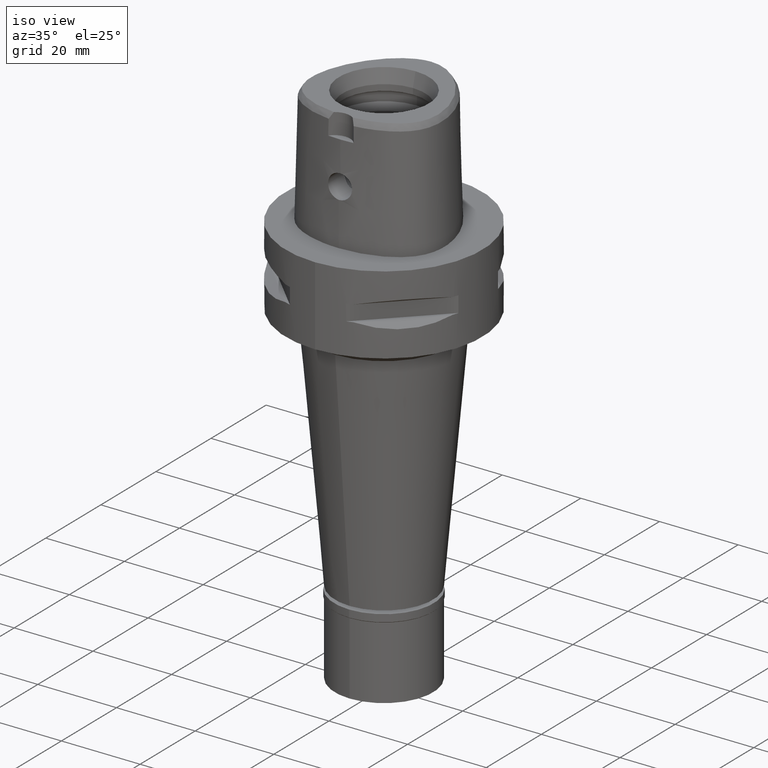
[diagram: clean part render]
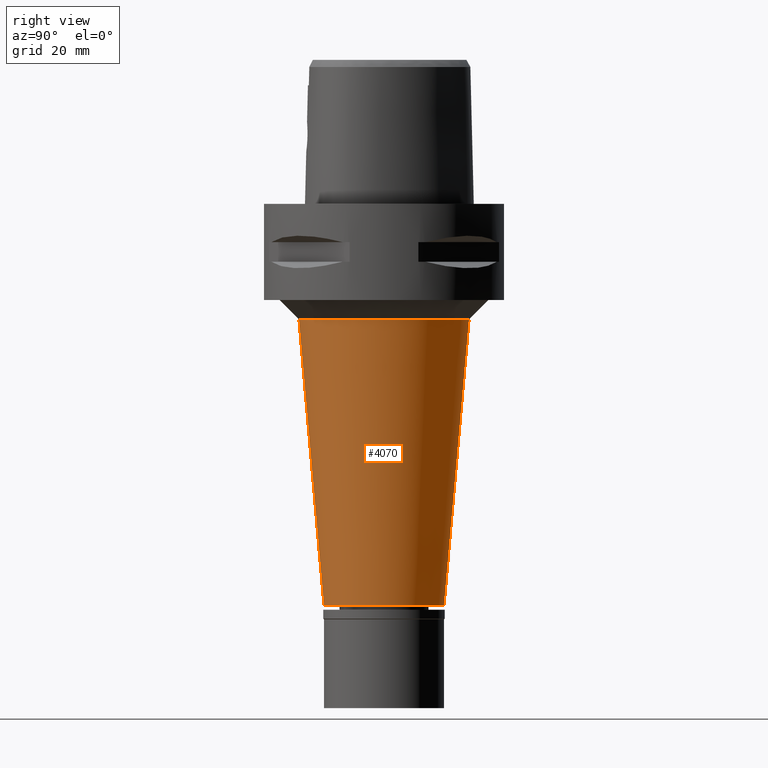
[diagram: tour spotlight — one face highlighted and labeled with its STEP entity id]
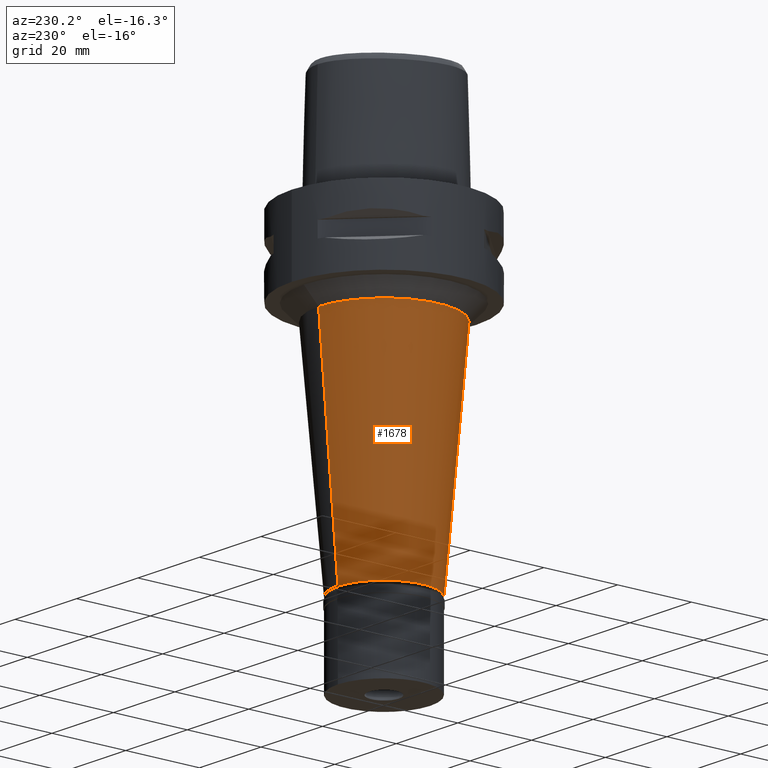
[diagram: tour spotlight — one face highlighted and labeled with its STEP entity id]
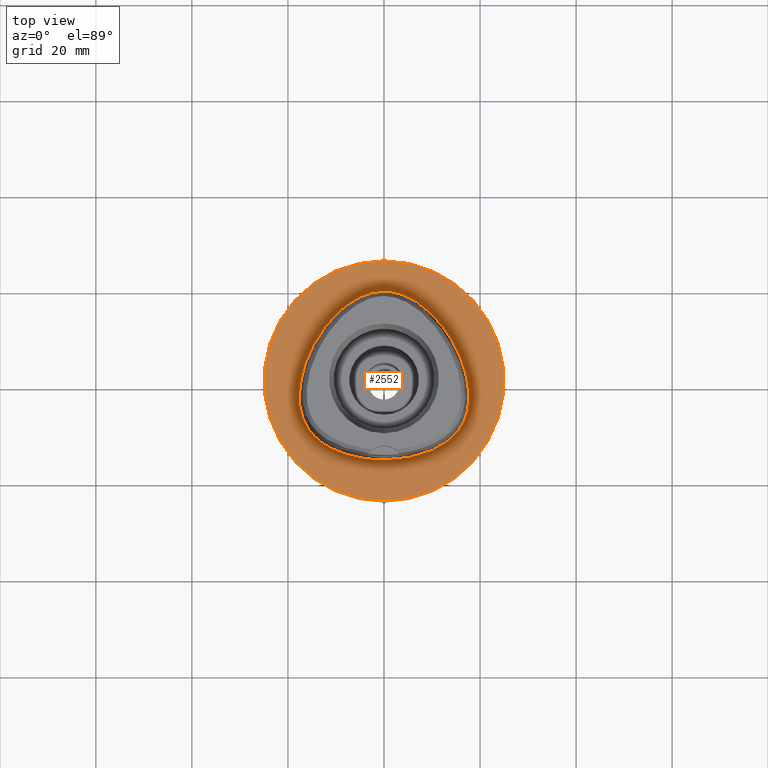
[diagram: tour spotlight — one face highlighted and labeled with its STEP entity id]
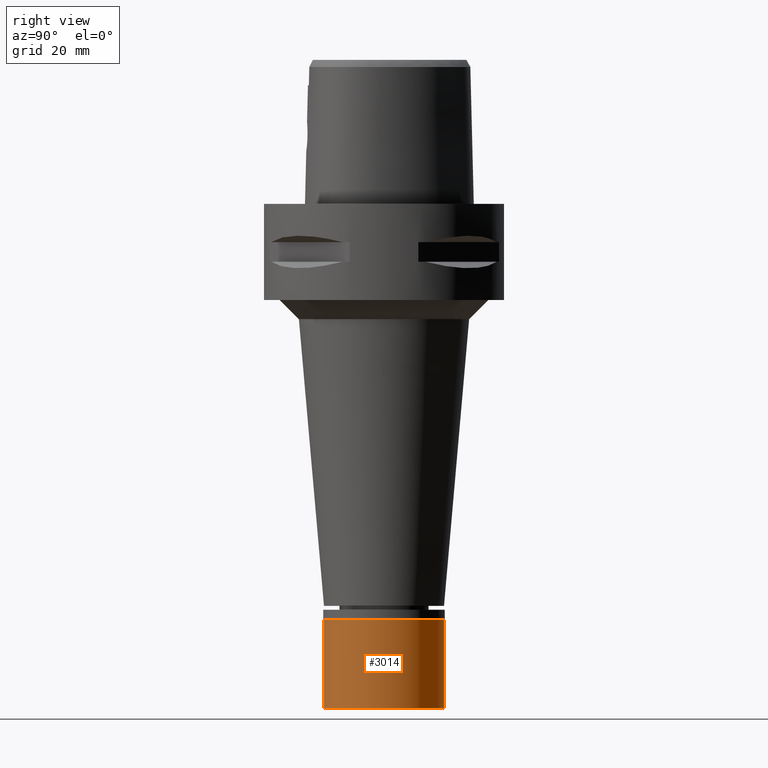
[diagram: tour spotlight — one face highlighted and labeled with its STEP entity id]
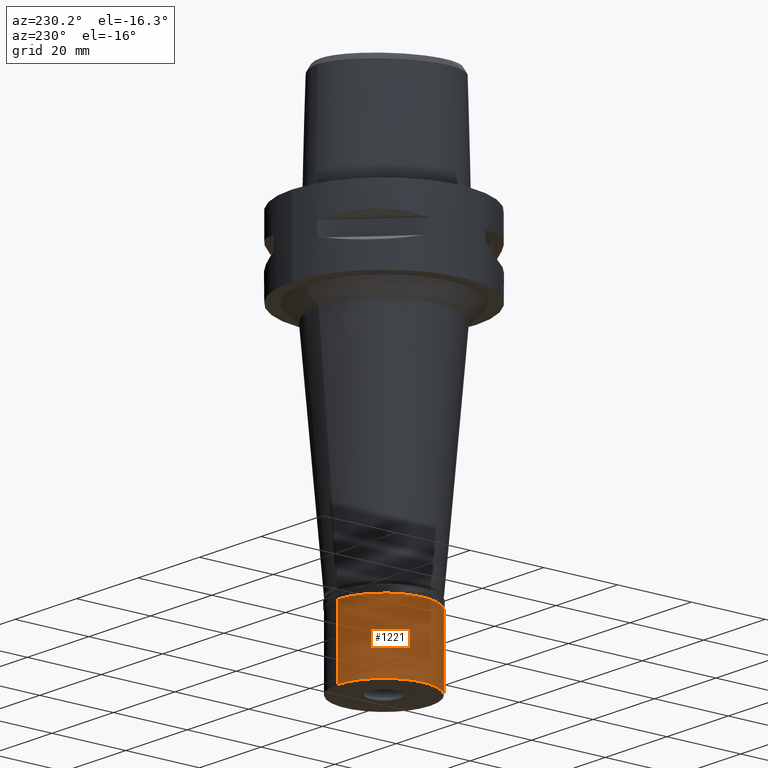
[diagram: tour spotlight — one face highlighted and labeled with its STEP entity id]
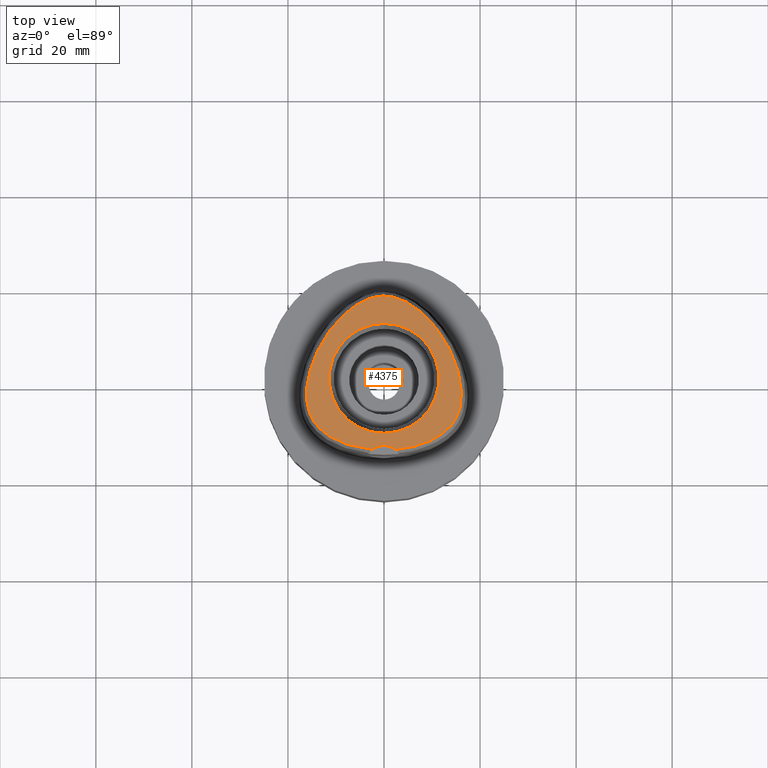
[diagram: tour spotlight — one face highlighted and labeled with its STEP entity id]
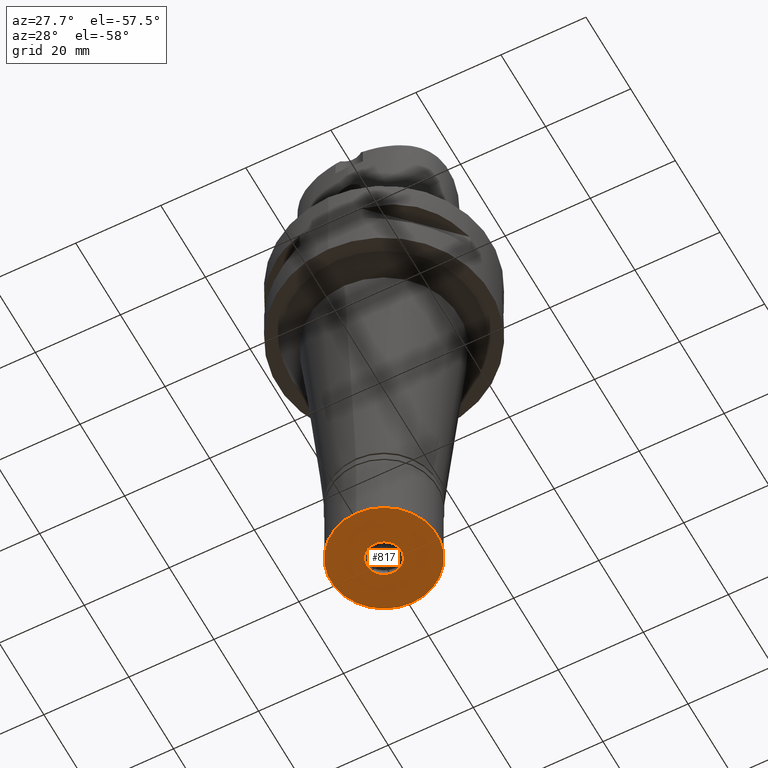
[diagram: tour spotlight — one face highlighted and labeled with its STEP entity id]
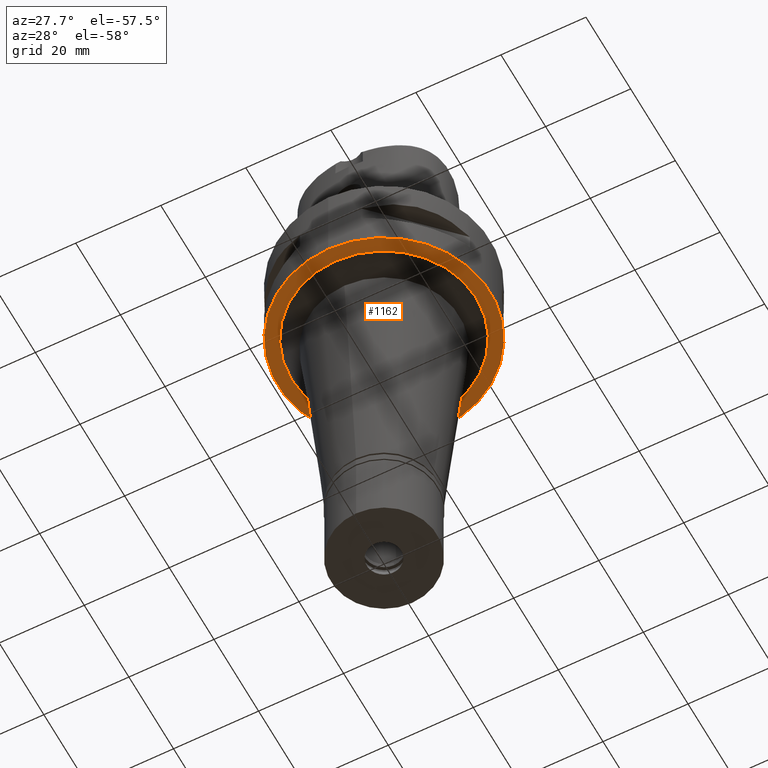
[diagram: tour spotlight — one face highlighted and labeled with its STEP entity id]
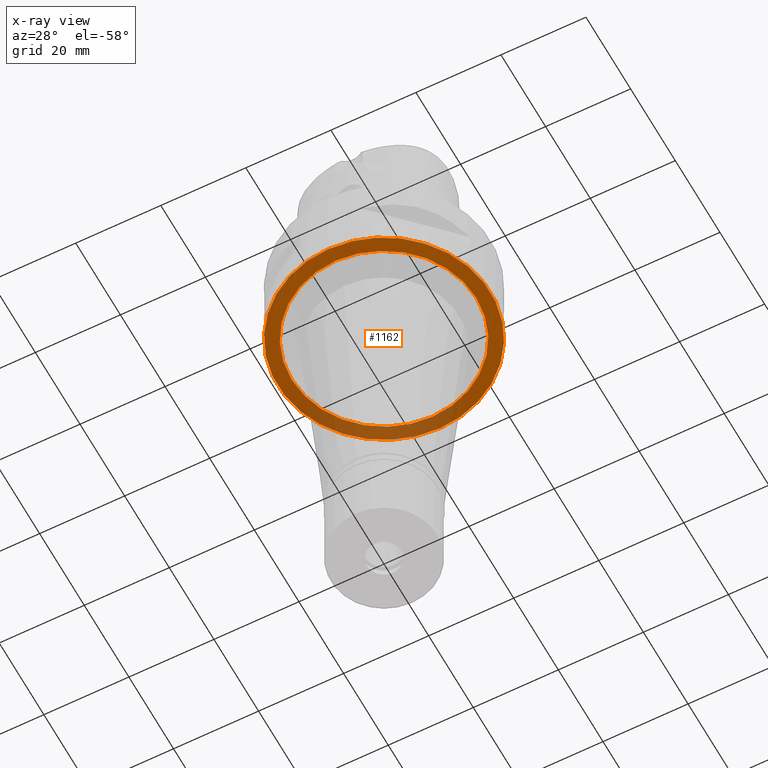
[diagram: x-ray of the same camera — body ghosted, this tour face saturated]
A machine part: a face-by-face anatomy tour. The part has 100 B-rep faces; the first image is the clean iso view, then the 8 largest visible faces are spotlighted one at a time (largest first), each with its STEP entity span.

Face 1 — right view, entity #4070. In plain terms, the highlighted conical surface has half-angle 5 deg.
Definition (entity closure, byte-faithful):
#188 = CARTESIAN_POINT ( 'NONE',  ( 0.0000000000000000000, 12.50000000000000000, -83.70000000000000284 ) ) ;
#325 = DIRECTION ( 'NONE',  ( 0.0000000000000000000, -1.000000000000000000, 0.0000000000000000000 ) ) ;
#558 = LINE ( 'NONE', #4044, #1078 ) ;
#585 = ORIENTED_EDGE ( 'NONE', *, *, #3172, .F. ) ;
#1073 = VECTOR ( 'NONE', #1766, 1000.000000000000000 ) ;
#1078 = VECTOR ( 'NONE', #2502, 1000.000000000000000 ) ;
#1142 = DIRECTION ( 'NONE',  ( 0.0000000000000000000, 0.0000000000000000000, 1.000000000000000000 ) ) ;
#1568 = ORIENTED_EDGE ( 'NONE', *, *, #2086, .T. ) ;
#1755 = CARTESIAN_POINT ( 'NONE',  ( 0.0000000000000000000, 0.0000000000000000000, -53.85000000000000142 ) ) ;
#1766 = DIRECTION ( 'NONE',  ( 0.0000000000000000000, -0.08715574274767391716, -0.9961946980917442129 ) ) ;
#1774 = EDGE_CURVE ( 'NONE', #4429, #2913, #4661, .T. ) ;
#1795 = CIRCLE ( 'NONE', #2121, 12.50000000000000000 ) ;
#1887 = EDGE_LOOP ( 'NONE', ( #4095, #2930, #1568, #585 ) ) ;
#2086 = EDGE_CURVE ( 'NONE', #4266, #4843, #1795, .T. ) ;
#2121 = AXIS2_PLACEMENT_3D ( 'NONE', #4220, #1142, #4943 ) ;
#2159 = EDGE_CURVE ( 'NONE', #4429, #4266, #558, .T. ) ;
#2166 = DIRECTION ( 'NONE',  ( 0.0000000000000000000, 0.0000000000000000000, 1.000000000000000000 ) ) ;
#2444 = DIRECTION ( 'NONE',  ( 0.0000000000000000000, 0.0000000000000000000, 1.000000000000000000 ) ) ;
#2461 = CARTESIAN_POINT ( 'NONE',  ( 0.0000000000000000000, 17.72307321249999745, -24.00000000000000000 ) ) ;
#2502 = DIRECTION ( 'NONE',  ( 0.0000000000000000000, 0.08715574274767391716, -0.9961946980917442129 ) ) ;
#2624 = FACE_OUTER_BOUND ( 'NONE', #1887, .T. ) ;
#2812 = CARTESIAN_POINT ( 'NONE',  ( 0.0000000000000000000, 0.0000000000000000000, -24.00000000000000000 ) ) ;
#2815 = CONICAL_SURFACE ( 'NONE', #3463, 15.11153660625000050, 0.08726646259969973729 ) ;
#2913 = VERTEX_POINT ( 'NONE', #4247 ) ;
#2930 = ORIENTED_EDGE ( 'NONE', *, *, #2159, .T. ) ;
#3172 = EDGE_CURVE ( 'NONE', #2913, #4843, #3683, .T. ) ;
#3269 = CARTESIAN_POINT ( 'NONE',  ( 0.0000000000000000000, -17.72307321249999745, -24.00000000000000000 ) ) ;
#3463 = AXIS2_PLACEMENT_3D ( 'NONE', #1755, #2166, #4828 ) ;
#3683 = LINE ( 'NONE', #2461, #1073 ) ;
#4044 = CARTESIAN_POINT ( 'NONE',  ( 0.0000000000000000000, -17.72307321249999745, -24.00000000000000000 ) ) ;
#4070 = ADVANCED_FACE ( 'NONE', ( #2624 ), #2815, .T. ) ;
#4095 = ORIENTED_EDGE ( 'NONE', *, *, #1774, .F. ) ;
#4220 = CARTESIAN_POINT ( 'NONE',  ( 0.0000000000000000000, 0.0000000000000000000, -83.70000000000000284 ) ) ;
#4247 = CARTESIAN_POINT ( 'NONE',  ( 0.0000000000000000000, 17.72307321249999745, -24.00000000000000000 ) ) ;
#4266 = VERTEX_POINT ( 'NONE', #4931 ) ;
#4429 = VERTEX_POINT ( 'NONE', #3269 ) ;
#4661 = CIRCLE ( 'NONE', #4821, 17.72307321249999745 ) ;
#4821 = AXIS2_PLACEMENT_3D ( 'NONE', #2812, #2444, #325 ) ;
#4828 = DIRECTION ( 'NONE',  ( 0.0000000000000000000, 1.000000000000000000, 0.0000000000000000000 ) ) ;
#4843 = VERTEX_POINT ( 'NONE', #188 ) ;
#4931 = CARTESIAN_POINT ( 'NONE',  ( 0.0000000000000000000, -12.50000000000000000, -83.70000000000000284 ) ) ;
#4943 = DIRECTION ( 'NONE',  ( 0.0000000000000000000, -1.000000000000000000, 0.0000000000000000000 ) ) ;

Face 2 — auxiliary view, entity #1678. In plain terms, the highlighted conical surface has half-angle 5 deg.
Definition (entity closure, byte-faithful):
#123 = CARTESIAN_POINT ( 'NONE',  ( 0.0000000000000000000, 0.0000000000000000000, -53.85000000000000142 ) ) ;
#188 = CARTESIAN_POINT ( 'NONE',  ( 0.0000000000000000000, 12.50000000000000000, -83.70000000000000284 ) ) ;
#247 = AXIS2_PLACEMENT_3D ( 'NONE', #885, #4757, #3988 ) ;
#558 = LINE ( 'NONE', #4044, #1078 ) ;
#703 = EDGE_CURVE ( 'NONE', #4429, #2913, #3946, .T. ) ;
#885 = CARTESIAN_POINT ( 'NONE',  ( 0.0000000000000000000, 0.0000000000000000000, -83.70000000000000284 ) ) ;
#918 = DIRECTION ( 'NONE',  ( 0.0000000000000000000, -1.000000000000000000, 0.0000000000000000000 ) ) ;
#971 = ORIENTED_EDGE ( 'NONE', *, *, #703, .T. ) ;
#1045 = CIRCLE ( 'NONE', #247, 12.50000000000000000 ) ;
#1073 = VECTOR ( 'NONE', #1766, 1000.000000000000000 ) ;
#1078 = VECTOR ( 'NONE', #2502, 1000.000000000000000 ) ;
#1153 = AXIS2_PLACEMENT_3D ( 'NONE', #123, #1251, #1654 ) ;
#1251 = DIRECTION ( 'NONE',  ( 0.0000000000000000000, 0.0000000000000000000, 1.000000000000000000 ) ) ;
#1654 = DIRECTION ( 'NONE',  ( 0.0000000000000000000, 1.000000000000000000, 0.0000000000000000000 ) ) ;
#1678 = ADVANCED_FACE ( 'NONE', ( #3271 ), #4194, .T. ) ;
#1766 = DIRECTION ( 'NONE',  ( 0.0000000000000000000, -0.08715574274767391716, -0.9961946980917442129 ) ) ;
#2159 = EDGE_CURVE ( 'NONE', #4429, #4266, #558, .T. ) ;
#2437 = ORIENTED_EDGE ( 'NONE', *, *, #3172, .T. ) ;
#2461 = CARTESIAN_POINT ( 'NONE',  ( 0.0000000000000000000, 17.72307321249999745, -24.00000000000000000 ) ) ;
#2502 = DIRECTION ( 'NONE',  ( 0.0000000000000000000, 0.08715574274767391716, -0.9961946980917442129 ) ) ;
#2913 = VERTEX_POINT ( 'NONE', #4247 ) ;
#3172 = EDGE_CURVE ( 'NONE', #2913, #4843, #3683, .T. ) ;
#3212 = EDGE_LOOP ( 'NONE', ( #3496, #3424, #971, #2437 ) ) ;
#3269 = CARTESIAN_POINT ( 'NONE',  ( 0.0000000000000000000, -17.72307321249999745, -24.00000000000000000 ) ) ;
#3271 = FACE_OUTER_BOUND ( 'NONE', #3212, .T. ) ;
#3424 = ORIENTED_EDGE ( 'NONE', *, *, #2159, .F. ) ;
#3496 = ORIENTED_EDGE ( 'NONE', *, *, #3884, .T. ) ;
#3683 = LINE ( 'NONE', #2461, #1073 ) ;
#3884 = EDGE_CURVE ( 'NONE', #4843, #4266, #1045, .T. ) ;
#3946 = CIRCLE ( 'NONE', #4101, 17.72307321249999745 ) ;
#3972 = DIRECTION ( 'NONE',  ( 0.0000000000000000000, 0.0000000000000000000, -1.000000000000000000 ) ) ;
#3988 = DIRECTION ( 'NONE',  ( 0.0000000000000000000, 1.000000000000000000, 0.0000000000000000000 ) ) ;
#4044 = CARTESIAN_POINT ( 'NONE',  ( 0.0000000000000000000, -17.72307321249999745, -24.00000000000000000 ) ) ;
#4101 = AXIS2_PLACEMENT_3D ( 'NONE', #4444, #3972, #918 ) ;
#4194 = CONICAL_SURFACE ( 'NONE', #1153, 15.11153660625000050, 0.08726646259969973729 ) ;
#4247 = CARTESIAN_POINT ( 'NONE',  ( 0.0000000000000000000, 17.72307321249999745, -24.00000000000000000 ) ) ;
#4266 = VERTEX_POINT ( 'NONE', #4931 ) ;
#4429 = VERTEX_POINT ( 'NONE', #3269 ) ;
#4444 = CARTESIAN_POINT ( 'NONE',  ( 0.0000000000000000000, 0.0000000000000000000, -24.00000000000000000 ) ) ;
#4757 = DIRECTION ( 'NONE',  ( 0.0000000000000000000, 0.0000000000000000000, 1.000000000000000000 ) ) ;
#4843 = VERTEX_POINT ( 'NONE', #188 ) ;
#4931 = CARTESIAN_POINT ( 'NONE',  ( 0.0000000000000000000, -12.50000000000000000, -83.70000000000000284 ) ) ;

Face 3 — top view, entity #2552. In plain terms, the highlighted planar face has unit normal (0, 0, -1).
Definition (entity closure, byte-faithful):
#74 = ORIENTED_EDGE ( 'NONE', *, *, #306, .F. ) ;
#96 = CARTESIAN_POINT ( 'NONE',  ( 16.66912846058657749, -8.445800798681265320, -1.712572970425946944E-06 ) ) ;
#120 = ORIENTED_EDGE ( 'NONE', *, *, #1070, .F. ) ;
#124 = CARTESIAN_POINT ( 'NONE',  ( 11.68694518706978869, -13.70394534983113921, -1.712572970425946944E-06 ) ) ;
#143 = CARTESIAN_POINT ( 'NONE',  ( 0.0000000000000000000, 1.285144351024999849E-14, 0.0000000000000000000 ) ) ;
#153 = CARTESIAN_POINT ( 'NONE',  ( -0.6801907856086026882, 18.69499999639396393, 1.444263577818610117E-07 ) ) ;
#306 = EDGE_CURVE ( 'NONE', #4281, #4221, #4899, .T. ) ;
#541 = CARTESIAN_POINT ( 'NONE',  ( -8.946741554946155972, -15.03902343408833531, 1.444263577818610117E-07 ) ) ;
#553 = CARTESIAN_POINT ( 'NONE',  ( -14.38008119375923322, 8.302343748185458949, 1.444263577818610117E-07 ) ) ;
#560 = CARTESIAN_POINT ( 'NONE',  ( 5.051093175161595283, -16.15562504237435704, -1.712572970425946944E-06 ) ) ;
#928 = DIRECTION ( 'NONE',  ( 0.0000000000000000000, 0.0000000000000000000, -1.000000000000000000 ) ) ;
#935 = VERTEX_POINT ( 'NONE', #3864 ) ;
#952 = CARTESIAN_POINT ( 'NONE',  ( 7.967839690892272841, 15.83070315896293856, -1.712572970425946944E-06 ) ) ;
#1070 = EDGE_CURVE ( 'NONE', #4221, #4281, #1816, .T. ) ;
#1113 = EDGE_CURVE ( 'NONE', #2212, #935, #3796, .T. ) ;
#1246 = CARTESIAN_POINT ( 'NONE',  ( -17.16495051433457775, -7.165908202094125379, 1.444263577818610117E-07 ) ) ;
#1253 = CARTESIAN_POINT ( 'NONE',  ( 17.49754716545705335, -0.2285937424829797004, -1.712572970425946944E-06 ) ) ;
#1277 = FACE_OUTER_BOUND ( 'NONE', #3157, .T. ) ;
#1286 = EDGE_LOOP ( 'NONE', ( #120, #74 ) ) ;
#1623 = DIRECTION ( 'NONE',  ( 0.0000000000000000000, 1.000000000000000000, 0.0000000000000000000 ) ) ;
#1656 = CARTESIAN_POINT ( 'NONE',  ( 13.50690096135295271, -12.48264651818617565, -1.712572970425946944E-06 ) ) ;
#1669 = ORIENTED_EDGE ( 'NONE', *, *, #1113, .F. ) ;
#1673 = CARTESIAN_POINT ( 'NONE',  ( 17.71143739855751065, -3.269218749721410688, -1.712572970425946944E-06 ) ) ;
#1681 = EDGE_CURVE ( 'NONE', #935, #2212, #3802, .T. ) ;
#1683 = CARTESIAN_POINT ( 'NONE',  ( -11.46563507746004085, 12.45218749765599320, 1.444263577818610117E-07 ) ) ;
#1702 = CARTESIAN_POINT ( 'NONE',  ( 14.78833383517904920, -11.28232913111573588, -1.712572970425946944E-06 ) ) ;
#1816 = B_SPLINE_CURVE_WITH_KNOTS ( 'NONE', 3,
 ( #4702, #153, #2454, #3967, #3987, #1683, #553, #3226, #2092, #4313, #2047, #1246, #2355, #2859, #2032, #2784, #3874, #4300, #541, #4740, #3568, #4669 ),
 .UNSPECIFIED., .F., .F.,
 ( 4, 1, 1, 1, 1, 1, 1, 1, 1, 1, 1, 1, 1, 1, 1, 1, 1, 1, 1, 4 ),
 ( 0.0000000000000000000, 0.04166666666808999803, 0.08333333333469000737, 0.1666666666679000042, 0.2500000000011000090, 0.3333333333342999860, 0.4166666666675999942, 0.5000000000008000267, 0.5416666666674000430, 0.5833333333340000593, 0.6250000000005999645, 0.6458333333339000282, 0.6666666666671999808, 0.6875000000005000445, 0.7083333333337999971, 0.7500000000004000134, 0.7916666666671000607, 0.8333333333336000459, 0.9166666666668999985, 1.000000000000000000 ),
 .UNSPECIFIED. ) ;
#1909 = CARTESIAN_POINT ( 'NONE',  ( 7.243243713501998717E-11, 18.69499999997999851, 1.586508702188999830E-13 ) ) ;
#2010 = DIRECTION ( 'NONE',  ( 0.0000000000000000000, -1.000000000000000000, 0.0000000000000000000 ) ) ;
#2032 = CARTESIAN_POINT ( 'NONE',  ( -15.64884223963316678, -10.21298827912482210, 1.444263577818610117E-07 ) ) ;
#2047 = CARTESIAN_POINT ( 'NONE',  ( -17.56373942573930691, -5.455996093236326061, 1.444263577818610117E-07 ) ) ;
#2092 = CARTESIAN_POINT ( 'NONE',  ( -17.49754711949925934, -0.2285937506339092706, 1.444263577818610117E-07 ) ) ;
#2212 = VERTEX_POINT ( 'NONE', #3259 ) ;
#2355 = CARTESIAN_POINT ( 'NONE',  ( -16.66912841808498413, -8.445800779780123335, 1.444263577818610117E-07 ) ) ;
#2454 = CARTESIAN_POINT ( 'NONE',  ( -2.040572356923711972, 18.55015624643911210, 1.444263577818610117E-07 ) ) ;
#2469 = CARTESIAN_POINT ( 'NONE',  ( 11.46563511313802941, 12.45218752777073590, -1.712572970425946944E-06 ) ) ;
#2552 = ADVANCED_FACE ( 'NONE', ( #1277, #4754 ), #2792, .F. ) ;
#2784 = CARTESIAN_POINT ( 'NONE',  ( -14.78833380136935460, -11.28232909906846260, 1.444263577818610117E-07 ) ) ;
#2789 = CARTESIAN_POINT ( 'NONE',  ( 7.243243713501998717E-11, 18.69499999997999851, 1.586508702188999830E-13 ) ) ;
#2792 = PLANE ( 'NONE',  #4280 ) ;
#2839 = AXIS2_PLACEMENT_3D ( 'NONE', #3189, #4713, #1623 ) ;
#2852 = CARTESIAN_POINT ( 'NONE',  ( -1.725937783839000138E-11, -16.45500000000000185, 1.598351081118999833E-13 ) ) ;
#2859 = CARTESIAN_POINT ( 'NONE',  ( -16.20602471650332177, -9.356552732565868169, 1.444263577818610117E-07 ) ) ;
#2866 = CARTESIAN_POINT ( 'NONE',  ( 15.64884227724995469, -10.21298830647458722, -1.712572970425946944E-06 ) ) ;
#3157 = EDGE_LOOP ( 'NONE', ( #1669, #3863 ) ) ;
#3174 = CARTESIAN_POINT ( 'NONE',  ( 4.728927225217471886, 17.73480472664720864, -1.712572970425946944E-06 ) ) ;
#3177 = DIRECTION ( 'NONE',  ( 0.0000000000000000000, -1.000000000000000000, 0.0000000000000000000 ) ) ;
#3189 = CARTESIAN_POINT ( 'NONE',  ( 0.0000000000000000000, 1.285144351024999849E-14, 0.0000000000000000000 ) ) ;
#3219 = CARTESIAN_POINT ( 'NONE',  ( 16.51672828830004036, 3.703437514615576021, -1.712572970425946944E-06 ) ) ;
#3226 = CARTESIAN_POINT ( 'NONE',  ( -16.51672824438333720, 3.703437498767654823, 1.444263577818610117E-07 ) ) ;
#3247 = AXIS2_PLACEMENT_3D ( 'NONE', #143, #3645, #2010 ) ;
#3259 = CARTESIAN_POINT ( 'NONE',  ( 0.0000000000000000000, 25.00000000000000000, 0.0000000000000000000 ) ) ;
#3568 = CARTESIAN_POINT ( 'NONE',  ( -1.683697722314835943, -16.45499999638638400, 1.444263577818610117E-07 ) ) ;
#3645 = DIRECTION ( 'NONE',  ( 0.0000000000000000000, 0.0000000000000000000, -1.000000000000000000 ) ) ;
#3796 = CIRCLE ( 'NONE', #2839, 25.00000000000000000 ) ;
#3802 = CIRCLE ( 'NONE', #3247, 25.00000000000000000 ) ;
#3863 = ORIENTED_EDGE ( 'NONE', *, *, #1681, .F. ) ;
#3864 = CARTESIAN_POINT ( 'NONE',  ( 0.0000000000000000000, -25.00000000000000000, 0.0000000000000000000 ) ) ;
#3874 = CARTESIAN_POINT ( 'NONE',  ( -13.50690093256139157, -12.48264648152385803, 1.444263577818610117E-07 ) ) ;
#3906 = CARTESIAN_POINT ( 'NONE',  ( 2.040572366481876454, 18.55015629216421402, -1.712572970425946944E-06 ) ) ;
#3967 = CARTESIAN_POINT ( 'NONE',  ( -4.728927205264671585, 17.73480468420080314, 1.444263577818610117E-07 ) ) ;
#3983 = CARTESIAN_POINT ( 'NONE',  ( 14.38008123416606487, 8.302343771511633719, -1.712572970425946944E-06 ) ) ;
#3987 = CARTESIAN_POINT ( 'NONE',  ( -7.967839661976221066, 15.83070312213826547, 1.444263577818610117E-07 ) ) ;
#3992 = CARTESIAN_POINT ( 'NONE',  ( 1.683697725056120698, -16.45500004281124262, -1.712572970425946733E-06 ) ) ;
#4221 = VERTEX_POINT ( 'NONE', #1909 ) ;
#4229 = CARTESIAN_POINT ( 'NONE',  ( -1.725937783839000138E-11, -16.45500000000000185, 1.598351081118999833E-13 ) ) ;
#4280 = AXIS2_PLACEMENT_3D ( 'NONE', #4698, #928, #3177 ) ;
#4281 = VERTEX_POINT ( 'NONE', #4229 ) ;
#4286 = CARTESIAN_POINT ( 'NONE',  ( 8.946741570869303217, -15.03902347796123529, -1.712572970425946944E-06 ) ) ;
#4300 = CARTESIAN_POINT ( 'NONE',  ( -11.68694516404650230, -13.70394530935218569, 1.444263577818610117E-07 ) ) ;
#4307 = CARTESIAN_POINT ( 'NONE',  ( 0.6801907889186218359, 18.69500004281214345, -1.712572970425946944E-06 ) ) ;
#4313 = CARTESIAN_POINT ( 'NONE',  ( -17.71143735198855040, -3.269218750023390463, 1.444263577818610117E-07 ) ) ;
#4381 = CARTESIAN_POINT ( 'NONE',  ( 17.56373947189545603, -5.455996099842496783, -1.712572970425946944E-06 ) ) ;
#4669 = CARTESIAN_POINT ( 'NONE',  ( -1.725937783839000138E-11, -16.45500000000000185, 1.598351081118999833E-13 ) ) ;
#4677 = CARTESIAN_POINT ( 'NONE',  ( 16.20602475678629517, -9.356552755822066914, -1.712572970425946944E-06 ) ) ;
#4698 = CARTESIAN_POINT ( 'NONE',  ( 0.0000000000000000000, 1.224646799146999965E-14, 0.0000000000000000000 ) ) ;
#4702 = CARTESIAN_POINT ( 'NONE',  ( 7.243243713501998717E-11, 18.69499999997999851, 1.586508702188999830E-13 ) ) ;
#4713 = DIRECTION ( 'NONE',  ( 0.0000000000000000000, 0.0000000000000000000, -1.000000000000000000 ) ) ;
#4740 = CARTESIAN_POINT ( 'NONE',  ( -5.051093166932916212, -16.15562499642308936, 1.444263577818610117E-07 ) ) ;
#4754 = FACE_BOUND ( 'NONE', #1286, .T. ) ;
#4773 = CARTESIAN_POINT ( 'NONE',  ( 17.16495055898973376, -7.165908215350180299, -1.712572970425946944E-06 ) ) ;
#4899 = B_SPLINE_CURVE_WITH_KNOTS ( 'NONE', 3,
 ( #2852, #3992, #560, #4286, #124, #1656, #1702, #2866, #4677, #96, #4773, #4381, #1673, #1253, #3219, #3983, #2469, #952, #3174, #3906, #4307, #2789 ),
 .UNSPECIFIED., .F., .F.,
 ( 4, 1, 1, 1, 1, 1, 1, 1, 1, 1, 1, 1, 1, 1, 1, 1, 1, 1, 1, 4 ),
 ( 0.0000000000000000000, 0.08333333333350000094, 0.1666666666668000230, 0.2083333333333000081, 0.2499999999998999967, 0.2916666666666000163, 0.3124999999998999689, 0.3333333333331000015, 0.3541666666665000407, 0.3749999999997999933, 0.4166666666664000096, 0.4583333333330000259, 0.4999999999995999866, 0.5833333333328000192, 0.6666666666660999718, 0.7499999999993000044, 0.8333333333325000369, 0.9166666666657000695, 0.9583333333322999747, 1.000000000000000000 ),
 .UNSPECIFIED. ) ;

Face 4 — right view, entity #3014. In plain terms, the highlighted cylindrical surface (partial cylindrical patch) has radius 12.5 mm, axis along (0, 0, -1).
Definition (entity closure, byte-faithful):
#110 = CIRCLE ( 'NONE', #3869, 12.50000000000000000 ) ;
#191 = CARTESIAN_POINT ( 'NONE',  ( 0.0000000000000000000, 12.50000000000000000, -2.000000000000000000 ) ) ;
#251 = CIRCLE ( 'NONE', #1289, 12.50000000000000000 ) ;
#461 = ORIENTED_EDGE ( 'NONE', *, *, #2120, .F. ) ;
#598 = VERTEX_POINT ( 'NONE', #2237 ) ;
#651 = VECTOR ( 'NONE', #1852, 1000.000000000000000 ) ;
#773 = DIRECTION ( 'NONE',  ( 0.0000000000000000000, 1.000000000000000000, 0.0000000000000000000 ) ) ;
#783 = DIRECTION ( 'NONE',  ( 0.0000000000000000000, 0.0000000000000000000, -1.000000000000000000 ) ) ;
#793 = CARTESIAN_POINT ( 'NONE',  ( 0.0000000000000000000, 0.0000000000000000000, -2.000000000000000000 ) ) ;
#909 = AXIS2_PLACEMENT_3D ( 'NONE', #2804, #3515, #1593 ) ;
#1289 = AXIS2_PLACEMENT_3D ( 'NONE', #793, #1573, #773 ) ;
#1573 = DIRECTION ( 'NONE',  ( 0.0000000000000000000, 0.0000000000000000000, -1.000000000000000000 ) ) ;
#1593 = DIRECTION ( 'NONE',  ( 0.0000000000000000000, -1.000000000000000000, 0.0000000000000000000 ) ) ;
#1671 = VERTEX_POINT ( 'NONE', #4379 ) ;
#1852 = DIRECTION ( 'NONE',  ( 0.0000000000000000000, 0.0000000000000000000, -1.000000000000000000 ) ) ;
#1902 = EDGE_CURVE ( 'NONE', #1671, #598, #110, .T. ) ;
#2120 = EDGE_CURVE ( 'NONE', #3151, #598, #2326, .T. ) ;
#2131 = DIRECTION ( 'NONE',  ( 0.0000000000000000000, 0.0000000000000000000, 1.000000000000000000 ) ) ;
#2179 = CARTESIAN_POINT ( 'NONE',  ( 0.0000000000000000000, 0.0000000000000000000, -20.50000000000000000 ) ) ;
#2237 = CARTESIAN_POINT ( 'NONE',  ( 0.0000000000000000000, 12.50000000000000000, -20.50000000000000000 ) ) ;
#2254 = LINE ( 'NONE', #2615, #651 ) ;
#2309 = ORIENTED_EDGE ( 'NONE', *, *, #4252, .T. ) ;
#2326 = LINE ( 'NONE', #3844, #2449 ) ;
#2449 = VECTOR ( 'NONE', #783, 1000.000000000000000 ) ;
#2557 = EDGE_LOOP ( 'NONE', ( #2309, #4609, #3282, #461 ) ) ;
#2615 = CARTESIAN_POINT ( 'NONE',  ( 0.0000000000000000000, -12.50000000000000000, -2.000000000000000000 ) ) ;
#2642 = FACE_OUTER_BOUND ( 'NONE', #2557, .T. ) ;
#2783 = CYLINDRICAL_SURFACE ( 'NONE', #909, 12.50000000000000000 ) ;
#2804 = CARTESIAN_POINT ( 'NONE',  ( 0.0000000000000000000, 0.0000000000000000000, 0.0000000000000000000 ) ) ;
#3014 = ADVANCED_FACE ( 'NONE', ( #2642 ), #2783, .T. ) ;
#3151 = VERTEX_POINT ( 'NONE', #191 ) ;
#3282 = ORIENTED_EDGE ( 'NONE', *, *, #1902, .T. ) ;
#3515 = DIRECTION ( 'NONE',  ( 0.0000000000000000000, 0.0000000000000000000, -1.000000000000000000 ) ) ;
#3662 = DIRECTION ( 'NONE',  ( 0.0000000000000000000, -1.000000000000000000, 0.0000000000000000000 ) ) ;
#3844 = CARTESIAN_POINT ( 'NONE',  ( 0.0000000000000000000, 12.50000000000000000, -2.000000000000000000 ) ) ;
#3869 = AXIS2_PLACEMENT_3D ( 'NONE', #2179, #2131, #3662 ) ;
#4157 = CARTESIAN_POINT ( 'NONE',  ( 0.0000000000000000000, -12.50000000000000000, -2.000000000000000000 ) ) ;
#4207 = VERTEX_POINT ( 'NONE', #4157 ) ;
#4252 = EDGE_CURVE ( 'NONE', #3151, #4207, #251, .T. ) ;
#4379 = CARTESIAN_POINT ( 'NONE',  ( 0.0000000000000000000, -12.50000000000000000, -20.50000000000000000 ) ) ;
#4609 = ORIENTED_EDGE ( 'NONE', *, *, #4614, .T. ) ;
#4614 = EDGE_CURVE ( 'NONE', #4207, #1671, #2254, .T. ) ;

Face 5 — auxiliary view, entity #1221. In plain terms, the highlighted cylindrical surface (partial cylindrical patch) has radius 12.5 mm, axis along (0, 0, -1).
Definition (entity closure, byte-faithful):
#191 = CARTESIAN_POINT ( 'NONE',  ( 0.0000000000000000000, 12.50000000000000000, -2.000000000000000000 ) ) ;
#427 = CIRCLE ( 'NONE', #2847, 12.50000000000000000 ) ;
#563 = AXIS2_PLACEMENT_3D ( 'NONE', #1685, #1661, #1260 ) ;
#581 = DIRECTION ( 'NONE',  ( 0.0000000000000000000, 0.0000000000000000000, -1.000000000000000000 ) ) ;
#598 = VERTEX_POINT ( 'NONE', #2237 ) ;
#602 = CYLINDRICAL_SURFACE ( 'NONE', #1631, 12.50000000000000000 ) ;
#651 = VECTOR ( 'NONE', #1852, 1000.000000000000000 ) ;
#672 = ORIENTED_EDGE ( 'NONE', *, *, #2616, .T. ) ;
#700 = ORIENTED_EDGE ( 'NONE', *, *, #2120, .T. ) ;
#783 = DIRECTION ( 'NONE',  ( 0.0000000000000000000, 0.0000000000000000000, -1.000000000000000000 ) ) ;
#876 = CARTESIAN_POINT ( 'NONE',  ( 0.0000000000000000000, 0.0000000000000000000, -2.000000000000000000 ) ) ;
#1221 = ADVANCED_FACE ( 'NONE', ( #4334 ), #602, .T. ) ;
#1260 = DIRECTION ( 'NONE',  ( 0.0000000000000000000, 1.000000000000000000, 0.0000000000000000000 ) ) ;
#1631 = AXIS2_PLACEMENT_3D ( 'NONE', #2452, #581, #3986 ) ;
#1661 = DIRECTION ( 'NONE',  ( 0.0000000000000000000, 0.0000000000000000000, 1.000000000000000000 ) ) ;
#1671 = VERTEX_POINT ( 'NONE', #4379 ) ;
#1685 = CARTESIAN_POINT ( 'NONE',  ( 0.0000000000000000000, 0.0000000000000000000, -20.50000000000000000 ) ) ;
#1852 = DIRECTION ( 'NONE',  ( 0.0000000000000000000, 0.0000000000000000000, -1.000000000000000000 ) ) ;
#2120 = EDGE_CURVE ( 'NONE', #3151, #598, #2326, .T. ) ;
#2236 = EDGE_LOOP ( 'NONE', ( #4790, #4367, #672, #700 ) ) ;
#2237 = CARTESIAN_POINT ( 'NONE',  ( 0.0000000000000000000, 12.50000000000000000, -20.50000000000000000 ) ) ;
#2254 = LINE ( 'NONE', #2615, #651 ) ;
#2326 = LINE ( 'NONE', #3844, #2449 ) ;
#2449 = VECTOR ( 'NONE', #783, 1000.000000000000000 ) ;
#2452 = CARTESIAN_POINT ( 'NONE',  ( 0.0000000000000000000, 0.0000000000000000000, 0.0000000000000000000 ) ) ;
#2581 = CIRCLE ( 'NONE', #563, 12.50000000000000000 ) ;
#2615 = CARTESIAN_POINT ( 'NONE',  ( 0.0000000000000000000, -12.50000000000000000, -2.000000000000000000 ) ) ;
#2616 = EDGE_CURVE ( 'NONE', #4207, #3151, #427, .T. ) ;
#2847 = AXIS2_PLACEMENT_3D ( 'NONE', #876, #3221, #3198 ) ;
#3151 = VERTEX_POINT ( 'NONE', #191 ) ;
#3198 = DIRECTION ( 'NONE',  ( 0.0000000000000000000, -1.000000000000000000, 0.0000000000000000000 ) ) ;
#3221 = DIRECTION ( 'NONE',  ( 0.0000000000000000000, 0.0000000000000000000, -1.000000000000000000 ) ) ;
#3801 = EDGE_CURVE ( 'NONE', #598, #1671, #2581, .T. ) ;
#3844 = CARTESIAN_POINT ( 'NONE',  ( 0.0000000000000000000, 12.50000000000000000, -2.000000000000000000 ) ) ;
#3986 = DIRECTION ( 'NONE',  ( 0.0000000000000000000, -1.000000000000000000, 0.0000000000000000000 ) ) ;
#4157 = CARTESIAN_POINT ( 'NONE',  ( 0.0000000000000000000, -12.50000000000000000, -2.000000000000000000 ) ) ;
#4207 = VERTEX_POINT ( 'NONE', #4157 ) ;
#4334 = FACE_OUTER_BOUND ( 'NONE', #2236, .T. ) ;
#4367 = ORIENTED_EDGE ( 'NONE', *, *, #4614, .F. ) ;
#4379 = CARTESIAN_POINT ( 'NONE',  ( 0.0000000000000000000, -12.50000000000000000, -20.50000000000000000 ) ) ;
#4614 = EDGE_CURVE ( 'NONE', #4207, #1671, #2254, .T. ) ;
#4790 = ORIENTED_EDGE ( 'NONE', *, *, #3801, .T. ) ;

Face 6 — top view, entity #4375. In plain terms, the highlighted planar face has unit normal (0, 0, 1).
Definition (entity closure, byte-faithful):
#3 = B_SPLINE_CURVE_WITH_KNOTS ( 'NONE', 3,
 ( #450, #1910, #1174, #3045, #43, #3144, #3451, #1985, #1574, #405, #4955, #3522, #3097, #67, #4932, #1501, #4230, #2337, #3854, #1601, #4209, #4648, #1933, #1225, #3474, #1959, #15, #3500, #1551, #4549, #2767, #849, #1128, #3792, #525, #1700, #95, #899, #169, #3548, #3596, #926, #3619, #4355, #4750, #2414, #3218, #1630, #3245, #1727, #873, #2490, #1326, #3961 ),
 .UNSPECIFIED., .F., .F.,
 ( 4, 1, 1, 1, 1, 1, 1, 1, 1, 1, 1, 1, 1, 1, 1, 1, 1, 1, 1, 1, 1, 1, 1, 1, 1, 1, 1, 1, 1, 1, 1, 1, 1, 1, 1, 1, 1, 1, 1, 1, 1, 1, 1, 1, 1, 1, 1, 1, 1, 1, 1, 4 ),
 ( 0.0000000000000000000, 0.01988587058640001182, 0.03977174117009996124, 0.05965761175399997285, 0.07954348233780006439, 0.09942935292160004490, 0.1193152235055000565, 0.1392010940893000370, 0.1590869646731999376, 0.1789728352568999981, 0.1988587058408000097, 0.2187445764247000213, 0.2386304470083999707, 0.2585163175922999823, 0.2784021881761000738, 0.2982880587598999433, 0.3181739293438000660, 0.3380597999276000465, 0.3579456705113999160, 0.3778315410952000075, 0.3977174116791000191, 0.4176032822630000307, 0.4374891528466999802, 0.4573750234305999918, 0.4772608940143999723, 0.4971467645981999528, 0.5170326351820999644, 0.5369185057659000559, 0.5568043763497000365, 0.5766902469335999371, 0.5965761175174000286, 0.6164619881012000091, 0.6363478586849999896, 0.6562337292689000012, 0.6761195998528000128, 0.6960054704364999623, 0.7158913410203999739, 0.7357772116042000654, 0.7556630821880000459, 0.7755489527718999465, 0.7954348233557000381, 0.8153206939395000186, 0.8352065645232999991, 0.8550924351072000107, 0.8749783056909999912, 0.8948641762747999717, 0.9147500468586799993, 0.9346359174424899718, 0.9545217880263200394, 0.9744076586101599879, 0.9942935291939859477, 1.000000000000000000 ),
 .UNSPECIFIED. ) ;
#15 = CARTESIAN_POINT ( 'NONE',  ( 16.04058509949770794, -1.654113685488216356, 30.00000000000141398 ) ) ;
#41 = ORIENTED_EDGE ( 'NONE', *, *, #1775, .F. ) ;
#43 = CARTESIAN_POINT ( 'NONE',  ( 1.774127352510726174, 16.97169788998927586, 29.99999999999994316 ) ) ;
#67 = CARTESIAN_POINT ( 'NONE',  ( 8.557117433366636661, 13.07415149352891426, 30.00000000000866152 ) ) ;
#95 = CARTESIAN_POINT ( 'NONE',  ( 14.76450668991128801, -8.742560395149638452, 29.99999999999834799 ) ) ;
#169 = CARTESIAN_POINT ( 'NONE',  ( 14.08238499151560852, -9.704590128438134400, 29.99999999999810285 ) ) ;
#262 = CARTESIAN_POINT ( 'NONE',  ( -2.535517866336109982, -14.79323888261858500, 29.99999999999928590 ) ) ;
#293 = CARTESIAN_POINT ( 'NONE',  ( -9.420854217685565857, 12.20577134109709228, 29.99999999999348432 ) ) ;
#316 = CARTESIAN_POINT ( 'NONE',  ( -3.771910472265386005, 16.33551310926734956, 29.99999999998770761 ) ) ;
#369 = CARTESIAN_POINT ( 'NONE',  ( -4.150496093831336886, -14.59917355180037646, 29.99999999999469580 ) ) ;
#405 = CARTESIAN_POINT ( 'NONE',  ( 5.258649622038655380, 15.58603480843283151, 30.00000000000263611 ) ) ;
#450 = CARTESIAN_POINT ( 'NONE',  ( -6.301949014264000276E-11, 17.15328888647999861, 30.00000000000000000 ) ) ;
#486 = CARTESIAN_POINT ( 'NONE',  ( 0.0000000000000000000, 11.43782217350000074, 30.00000000000000000 ) ) ;
#498 = CARTESIAN_POINT ( 'NONE',  ( 0.0000000000000000000, 0.0000000000000000000, 30.00000000000000000 ) ) ;
#525 = CARTESIAN_POINT ( 'NONE',  ( 15.29323375805110707, -7.718923543002465415, 30.00000000000203215 ) ) ;
#595 = CARTESIAN_POINT ( 'NONE',  ( -2.406542353497000075, -14.80491723099000012, 30.00000000000000000 ) ) ;
#637 = EDGE_CURVE ( 'NONE', #3915, #4487, #1145, .T. ) ;
#686 = CARTESIAN_POINT ( 'NONE',  ( -10.27907733182396299, 11.24278573582863494, 29.99999999999036149 ) ) ;
#712 = CARTESIAN_POINT ( 'NONE',  ( -11.11900396222916143, 10.19116357425620301, 29.99999999999977263 ) ) ;
#736 = CARTESIAN_POINT ( 'NONE',  ( -10.60021164903047186, -12.49731984709217336, 29.99999999998995293 ) ) ;
#822 = EDGE_CURVE ( 'NONE', #4487, #2774, #4664, .T. ) ;
#849 = CARTESIAN_POINT ( 'NONE',  ( 15.87349190488083650, -5.869792298897619887, 29.99999999999832312 ) ) ;
#873 = CARTESIAN_POINT ( 'NONE',  ( 4.159771979225014071, -14.59766906204359316, 29.99999999999851497 ) ) ;
#899 = CARTESIAN_POINT ( 'NONE',  ( 14.44767169633080606, -9.224476417585231403, 30.00000000000371259 ) ) ;
#926 = CARTESIAN_POINT ( 'NONE',  ( 12.65514534656690593, -11.12483370674301852, 30.00000000000713385 ) ) ;
#996 = CIRCLE ( 'NONE', #1392, 11.43782217350000074 ) ;
#1035 = CARTESIAN_POINT ( 'NONE',  ( -12.65209017756371779, -11.12734424253531706, 29.99999999999503331 ) ) ;
#1046 = DIRECTION ( 'NONE',  ( 0.0000000000000000000, -1.000000000000000000, 0.0000000000000000000 ) ) ;
#1065 = CARTESIAN_POINT ( 'NONE',  ( -6.862723739081291185, 14.51536572209023745, 29.99999999999525357 ) ) ;
#1090 = CARTESIAN_POINT ( 'NONE',  ( -15.87300767660370582, -5.872112237379085720, 29.99999999999795008 ) ) ;
#1100 = DIRECTION ( 'NONE',  ( 0.0000000000000000000, 0.0000000000000000000, 1.000000000000000000 ) ) ;
#1111 = CARTESIAN_POINT ( 'NONE',  ( -14.44611813752804963, -9.226676124713586447, 29.99999999998915357 ) ) ;
#1128 = CARTESIAN_POINT ( 'NONE',  ( 15.71128456931854878, -6.534031654963371238, 30.00000000000700595 ) ) ;
#1138 = CARTESIAN_POINT ( 'NONE',  ( -6.650243356160641106, -14.05992414833920989, 30.00000000000115463 ) ) ;
#1145 = CIRCLE ( 'NONE', #4653, 4.000000000000000888 ) ;
#1174 = CARTESIAN_POINT ( 'NONE',  ( 0.5691917915716266929, 17.14006060249510455, 30.00000000000938627 ) ) ;
#1206 = AXIS2_PLACEMENT_3D ( 'NONE', #498, #4353, #2442 ) ;
#1225 = CARTESIAN_POINT ( 'NONE',  ( 15.39668103801475496, 1.657188505494441966, 30.00000000000181899 ) ) ;
#1249 = PLANE ( 'NONE',  #1206 ) ;
#1326 = CARTESIAN_POINT ( 'NONE',  ( 2.538962679605336614, -14.79292722369346436, 30.00000000000666844 ) ) ;
#1350 = ORIENTED_EDGE ( 'NONE', *, *, #637, .F. ) ;
#1392 = AXIS2_PLACEMENT_3D ( 'NONE', #4054, #1854, #1046 ) ;
#1414 = CARTESIAN_POINT ( 'NONE',  ( -14.55898035934561996, 4.112421202111315566, 29.99999999999048583 ) ) ;
#1440 = CARTESIAN_POINT ( 'NONE',  ( -14.01158736113377401, 5.375902008631999962, 29.99999999999031175 ) ) ;
#1465 = CARTESIAN_POINT ( 'NONE',  ( -16.04083576398091182, -1.656498942829188525, 29.99999999999378275 ) ) ;
#1478 = CARTESIAN_POINT ( 'NONE',  ( 0.0000000000000000000, -18.00000000000000000, 30.00000000000000000 ) ) ;
#1489 = CARTESIAN_POINT ( 'NONE',  ( -13.66338899148688313, -10.18351204678834954, 29.99999999999059952 ) ) ;
#1501 = CARTESIAN_POINT ( 'NONE',  ( 10.27891984617860821, 11.24296481357842303, 29.99999999999540279 ) ) ;
#1508 = CARTESIAN_POINT ( 'NONE',  ( -15.51623783591285566, -7.150856098907139469, 29.99999999999303313 ) ) ;
#1551 = CARTESIAN_POINT ( 'NONE',  ( 16.12546998862469394, -3.533461825553787072, 30.00000000000701661 ) ) ;
#1574 = CARTESIAN_POINT ( 'NONE',  ( 4.499552315895782861, 15.99769543814334760, 30.00000000000113332 ) ) ;
#1601 = CARTESIAN_POINT ( 'NONE',  ( 13.38374903490633017, 6.636915464740512860, 30.00000000000369482 ) ) ;
#1621 = EDGE_CURVE ( 'NONE', #2774, #3915, #3, .T. ) ;
#1630 = CARTESIAN_POINT ( 'NONE',  ( 7.783816186093504896, -13.71424622166772878, 30.00000000000591527 ) ) ;
#1700 = CARTESIAN_POINT ( 'NONE',  ( 15.04259016984798336, -8.247723288182914558, 30.00000000000509459 ) ) ;
#1727 = CARTESIAN_POINT ( 'NONE',  ( 5.446614459517546969, -14.35518554872550112, 30.00000000000447642 ) ) ;
#1775 = EDGE_CURVE ( 'NONE', #2216, #3740, #996, .T. ) ;
#1822 = CARTESIAN_POINT ( 'NONE',  ( -8.809985523416452580, -13.33678107331107121, 29.99999999999518607 ) ) ;
#1846 = CARTESIAN_POINT ( 'NONE',  ( -3.077178008231582051, 16.60571267458082900, 29.99999999999884537 ) ) ;
#1854 = DIRECTION ( 'NONE',  ( 0.0000000000000000000, 0.0000000000000000000, 1.000000000000000000 ) ) ;
#1872 = CARTESIAN_POINT ( 'NONE',  ( -14.76322153899923251, -8.744676018999168576, 29.99999999999742428 ) ) ;
#1896 = CARTESIAN_POINT ( 'NONE',  ( -11.36350786442308625, -12.05063008428695603, 29.99999999999124967 ) ) ;
#1910 = CARTESIAN_POINT ( 'NONE',  ( 0.1912597614439600635, 17.15328888648557637, 30.00000000000241229 ) ) ;
#1933 = CARTESIAN_POINT ( 'NONE',  ( 15.02033012161492920, 2.869071121502117627, 30.00000000000621014 ) ) ;
#1959 = CARTESIAN_POINT ( 'NONE',  ( 15.90185233182547009, -0.6139199331565184936, 29.99999999999838707 ) ) ;
#1985 = CARTESIAN_POINT ( 'NONE',  ( 3.772905803807292013, 16.33508552419415594, 30.00000000000188294 ) ) ;
#2175 = CARTESIAN_POINT ( 'NONE',  ( -13.18915979441799458, -10.65722997876885181, 29.99999999999839062 ) ) ;
#2216 = VERTEX_POINT ( 'NONE', #3281 ) ;
#2226 = CARTESIAN_POINT ( 'NONE',  ( -4.498660734199212641, 15.99814720006219382, 29.99999999999126032 ) ) ;
#2248 = CARTESIAN_POINT ( 'NONE',  ( -5.437876102061689920, -14.35707869331426956, 29.99999999999909051 ) ) ;
#2274 = CARTESIAN_POINT ( 'NONE',  ( -15.39727819201477033, 1.655076005306336029, 29.99999999999497291 ) ) ;
#2288 = DIRECTION ( 'NONE',  ( 0.6016359810410799591, 0.7987703964949736113, 0.0000000000000000000 ) ) ;
#2337 = CARTESIAN_POINT ( 'NONE',  ( 11.92667412981768393, 9.061218325782252947, 29.99999999999914380 ) ) ;
#2414 = CARTESIAN_POINT ( 'NONE',  ( 9.755668685252240735, -12.92551394022894584, 30.00000000000078515 ) ) ;
#2421 = CIRCLE ( 'NONE', #3305, 11.43782217350000074 ) ;
#2442 = DIRECTION ( 'NONE',  ( 1.000000000000000000, 0.0000000000000000000, 0.0000000000000000000 ) ) ;
#2490 = CARTESIAN_POINT ( 'NONE',  ( 3.130495111450621426, -14.73481892791945924, 30.00000000000507328 ) ) ;
#2609 = CARTESIAN_POINT ( 'NONE',  ( -5.257871200568376757, 15.58649213537347933, 29.99999999999405631 ) ) ;
#2631 = CARTESIAN_POINT ( 'NONE',  ( -6.301949014264000276E-11, 17.15328888647999861, 30.00000000000000000 ) ) ;
#2678 = CARTESIAN_POINT ( 'NONE',  ( -15.29229544369701621, -7.721097396978152894, 29.99999999999196376 ) ) ;
#2751 = ORIENTED_EDGE ( 'NONE', *, *, #4250, .F. ) ;
#2767 = CARTESIAN_POINT ( 'NONE',  ( 15.99982784345999676, -5.151471542954396021, 29.99999999999570477 ) ) ;
#2774 = VERTEX_POINT ( 'NONE', #4432 ) ;
#2809 = EDGE_LOOP ( 'NONE', ( #4788, #3849, #1350 ) ) ;
#2954 = CARTESIAN_POINT ( 'NONE',  ( -13.38439869301890006, 6.635703175840772516, 29.99999999999769784 ) ) ;
#2978 = CARTESIAN_POINT ( 'NONE',  ( -11.92713521269264909, 9.060544494663886894, 29.99999999999118216 ) ) ;
#3009 = CARTESIAN_POINT ( 'NONE',  ( -0.5679008307150227308, 17.14013367087896711, 29.99999999999379341 ) ) ;
#3031 = CARTESIAN_POINT ( 'NONE',  ( -12.04571048960185919, -11.59259605427311790, 29.99999999999439382 ) ) ;
#3045 = CARTESIAN_POINT ( 'NONE',  ( 1.161482229273651967, 17.07843133414920800, 30.00000000000861178 ) ) ;
#3097 = CARTESIAN_POINT ( 'NONE',  ( 7.700998872106244342, 13.84384558891077788, 30.00000000000272848 ) ) ;
#3144 = CARTESIAN_POINT ( 'NONE',  ( 2.412811123804576408, 16.81558681049573423, 30.00000000000860467 ) ) ;
#3170 = FACE_OUTER_BOUND ( 'NONE', #2809, .T. ) ;
#3218 = CARTESIAN_POINT ( 'NONE',  ( 8.816245487876816611, -13.33426548781725174, 30.00000000000341771 ) ) ;
#3245 = CARTESIAN_POINT ( 'NONE',  ( 6.658132732488456718, -14.05774790739256197, 29.99999999999906208 ) ) ;
#3281 = CARTESIAN_POINT ( 'NONE',  ( 0.0000000000000000000, -11.43782217350000074, 30.00000000000000000 ) ) ;
#3305 = AXIS2_PLACEMENT_3D ( 'NONE', #3791, #3853, #3521 ) ;
#3337 = CARTESIAN_POINT ( 'NONE',  ( -15.04149970407932102, -8.249836848501193032, 30.00000000000076739 ) ) ;
#3361 = CARTESIAN_POINT ( 'NONE',  ( -15.68979199461320206, 0.4896967076518954909, 29.99999999999279154 ) ) ;
#3385 = CARTESIAN_POINT ( 'NONE',  ( -2.411640998825582027, 16.81591728050747747, 29.99999999999674927 ) ) ;
#3436 = CARTESIAN_POINT ( 'NONE',  ( -15.99949242929145399, -5.153835065648586067, 29.99999999999894129 ) ) ;
#3451 = CARTESIAN_POINT ( 'NONE',  ( 3.078265684543572078, 16.60532678263331618, 29.99999999999977263 ) ) ;
#3474 = CARTESIAN_POINT ( 'NONE',  ( 15.68929135224160554, 0.4919393172821490690, 30.00000000000165556 ) ) ;
#3500 = CARTESIAN_POINT ( 'NONE',  ( 16.11273027397101032, -2.627494158581119787, 29.99999999999924327 ) ) ;
#3521 = DIRECTION ( 'NONE',  ( 0.0000000000000000000, 1.000000000000000000, 0.0000000000000000000 ) ) ;
#3522 = CARTESIAN_POINT ( 'NONE',  ( 6.863227115065241968, 14.51498137220099238, 29.99999999999868550 ) ) ;
#3548 = CARTESIAN_POINT ( 'NONE',  ( 13.66559393375280074, -10.18115111193322875, 30.00000000000255795 ) ) ;
#3596 = CARTESIAN_POINT ( 'NONE',  ( 13.19176257967356491, -10.65479018522814414, 30.00000000000557776 ) ) ;
#3603 = CARTESIAN_POINT ( 'NONE',  ( 2.406543924163999648, -14.80491841401999942, 30.00000000000000000 ) ) ;
#3619 = CARTESIAN_POINT ( 'NONE',  ( 12.04928217776314092, -11.59002493206656759, 30.00000000000142819 ) ) ;
#3703 = CARTESIAN_POINT ( 'NONE',  ( -16.11283982316294683, -2.629907404753471400, 29.99999999999382183 ) ) ;
#3731 = CARTESIAN_POINT ( 'NONE',  ( -15.90223487644563605, -0.6162487013685431503, 29.99999999998832934 ) ) ;
#3740 = VERTEX_POINT ( 'NONE', #486 ) ;
#3777 = CARTESIAN_POINT ( 'NONE',  ( -1.160151454488762557, 17.07862209883199966, 29.99999999998806288 ) ) ;
#3791 = CARTESIAN_POINT ( 'NONE',  ( 0.0000000000000000000, 1.570609519905999910E-14, 30.00000000000000000 ) ) ;
#3792 = CARTESIAN_POINT ( 'NONE',  ( 15.51702143705866987, -7.148634146068926221, 30.00000000000034817 ) ) ;
#3803 = CARTESIAN_POINT ( 'NONE',  ( -8.556928701965444972, 13.07433695898741277, 29.99999999999374722 ) ) ;
#3849 = ORIENTED_EDGE ( 'NONE', *, *, #822, .F. ) ;
#3853 = DIRECTION ( 'NONE',  ( 0.0000000000000000000, 0.0000000000000000000, 1.000000000000000000 ) ) ;
#3854 = CARTESIAN_POINT ( 'NONE',  ( 12.68590586676939402, 7.870511070825140898, 30.00000000000611422 ) ) ;
#3915 = VERTEX_POINT ( 'NONE', #3603 ) ;
#3961 = CARTESIAN_POINT ( 'NONE',  ( 2.406543924163999648, -14.80491841401999942, 30.00000000000000000 ) ) ;
#4054 = CARTESIAN_POINT ( 'NONE',  ( 0.0000000000000000000, 1.570609519905999910E-14, 30.00000000000000000 ) ) ;
#4089 = CARTESIAN_POINT ( 'NONE',  ( -14.08052509618401338, -9.706873108419006968, 29.99999999999145572 ) ) ;
#4119 = CARTESIAN_POINT ( 'NONE',  ( -12.68647747557264616, 7.869569494476350791, 29.99999999999569411 ) ) ;
#4142 = CARTESIAN_POINT ( 'NONE',  ( -9.750168658359328333, -12.92810664734225234, 29.99999999999670308 ) ) ;
#4168 = CARTESIAN_POINT ( 'NONE',  ( -2.406542353497000075, -14.80491723099000012, 30.00000000000000000 ) ) ;
#4195 = CARTESIAN_POINT ( 'NONE',  ( -15.71065119879154182, -6.536303815290240848, 29.99999999999480949 ) ) ;
#4209 = CARTESIAN_POINT ( 'NONE',  ( 14.01089202938426226, 5.377385268371273064, 30.00000000000313349 ) ) ;
#4230 = CARTESIAN_POINT ( 'NONE',  ( 11.11868440496190225, 10.19157821280231602, 30.00000000000032330 ) ) ;
#4250 = EDGE_CURVE ( 'NONE', #3740, #2216, #2421, .T. ) ;
#4353 = DIRECTION ( 'NONE',  ( 0.0000000000000000000, 0.0000000000000000000, 1.000000000000000000 ) ) ;
#4355 = CARTESIAN_POINT ( 'NONE',  ( 11.36765809995468324, -12.04801986072648212, 29.99999999999906208 ) ) ;
#4375 = ADVANCED_FACE ( 'NONE', ( #3170, #4673 ), #1249, .T. ) ;
#4432 = CARTESIAN_POINT ( 'NONE',  ( -6.301949014264000276E-11, 17.15328888647999861, 30.00000000000000000 ) ) ;
#4466 = CARTESIAN_POINT ( 'NONE',  ( -3.123276563984566323, -14.73562494724882299, 29.99999999999677058 ) ) ;
#4487 = VERTEX_POINT ( 'NONE', #595 ) ;
#4488 = CARTESIAN_POINT ( 'NONE',  ( -15.02099409651460959, 2.867135356161226056, 29.99999999999357669 ) ) ;
#4514 = CARTESIAN_POINT ( 'NONE',  ( -0.1909045559980261930, 17.15328888648786076, 29.99999999999368683 ) ) ;
#4535 = CARTESIAN_POINT ( 'NONE',  ( -16.08550869467079636, -4.376322360226269303, 29.99999999999928946 ) ) ;
#4549 = CARTESIAN_POINT ( 'NONE',  ( 16.08569500455136847, -4.373922630229362341, 30.00000000000552802 ) ) ;
#4557 = EDGE_LOOP ( 'NONE', ( #41, #2751 ) ) ;
#4558 = CARTESIAN_POINT ( 'NONE',  ( -7.776737509123288206, -13.71663015822692344, 29.99999999999619504 ) ) ;
#4648 = CARTESIAN_POINT ( 'NONE',  ( 14.55828366953003083, 4.114142377745285906, 30.00000000000037303 ) ) ;
#4653 = AXIS2_PLACEMENT_3D ( 'NONE', #1478, #1100, #2288 ) ;
#4664 = B_SPLINE_CURVE_WITH_KNOTS ( 'NONE', 3,
 ( #4168, #262, #4466, #369, #2248, #1138, #4558, #1822, #4142, #736, #1896, #3031, #1035, #2175, #1489, #4089, #1111, #1872, #3337, #2678, #1508, #4195, #1090, #3436, #4535, #4836, #3703, #1465, #3731, #3361, #2274, #4488, #1414, #1440, #2954, #4119, #2978, #712, #686, #293, #3803, #4860, #1065, #4940, #2609, #2226, #316, #1846, #3385, #4889, #3777, #3009, #4514, #2631 ),
 .UNSPECIFIED., .F., .F.,
 ( 4, 1, 1, 1, 1, 1, 1, 1, 1, 1, 1, 1, 1, 1, 1, 1, 1, 1, 1, 1, 1, 1, 1, 1, 1, 1, 1, 1, 1, 1, 1, 1, 1, 1, 1, 1, 1, 1, 1, 1, 1, 1, 1, 1, 1, 1, 1, 1, 1, 1, 1, 4 ),
 ( 0.0000000000000000000, 0.005566907331700066131, 0.02545556918509994659, 0.04534423103860008020, 0.06523289289190004059, 0.08512155474529992105, 0.1050102165987000236, 0.1248988784521999351, 0.1447875403055000065, 0.1646762021588999980, 0.1845648640122999895, 0.2044535258655999499, 0.2243421877191000835, 0.2442308495724999640, 0.2641195114257999244, 0.2840081732792000269, 0.3038968351325999073, 0.3237854969860000098, 0.3436741588394000013, 0.3635628206927999928, 0.3834514825461999843, 0.4033401443995000557, 0.4232288062529999673, 0.4431174681064000698, 0.4630061299597000302, 0.4828947918130999106, 0.5027834536666000442, 0.5226721155199000046, 0.5425607773732999961, 0.5624494392267000986, 0.5823381010799999480, 0.6022267629334999706, 0.6221154247869000731, 0.6420040866403000646, 0.6618927484936000250, 0.6817814103470000164, 0.7016700722005000390, 0.7215587340537999994, 0.7414473959071999909, 0.7613360577605999824, 0.7812247196139999739, 0.8011133814673999654, 0.8210020433207999568, 0.8408907051741000283, 0.8607793670275000197, 0.8806680288810000423, 0.9005566907343299787, 0.9204453525877199782, 0.9403340144411099777, 0.9602226762944999772, 0.9801113381478899766, 1.000000000000000000 ),
 .UNSPECIFIED. ) ;
#4673 = FACE_BOUND ( 'NONE', #4557, .T. ) ;
#4750 = CARTESIAN_POINT ( 'NONE',  ( 10.60500548643626928, -12.49469941439920895, 29.99999999999682032 ) ) ;
#4788 = ORIENTED_EDGE ( 'NONE', *, *, #1621, .F. ) ;
#4836 = CARTESIAN_POINT ( 'NONE',  ( -16.12543283908613390, -3.535877041748325844, 29.99999999999453237 ) ) ;
#4860 = CARTESIAN_POINT ( 'NONE',  ( -7.700642921101830574, 13.84415306341927732, 29.99999999999347366 ) ) ;
#4889 = CARTESIAN_POINT ( 'NONE',  ( -1.772880577022345472, 16.97196055716467455, 29.99999999998914646 ) ) ;
#4932 = CARTESIAN_POINT ( 'NONE',  ( 9.420872132874452021, 12.20574557692761175, 30.00000000000856559 ) ) ;
#4940 = CARTESIAN_POINT ( 'NONE',  ( -6.047371482396481923, 15.09400374235549691, 29.99999999999537792 ) ) ;
#4955 = CARTESIAN_POINT ( 'NONE',  ( 6.048015628560454715, 15.09357031580157127, 30.00000000000206768 ) ) ;

Face 7 — auxiliary view, entity #817. In plain terms, the highlighted planar face has unit normal (0, 0, -1).
Definition (entity closure, byte-faithful):
#110 = CIRCLE ( 'NONE', #3869, 12.50000000000000000 ) ;
#160 = DIRECTION ( 'NONE',  ( 0.0000000000000000000, 0.0000000000000000000, -1.000000000000000000 ) ) ;
#184 = CIRCLE ( 'NONE', #3000, 4.050000000000999911 ) ;
#204 = DIRECTION ( 'NONE',  ( 0.0000000000000000000, -1.000000000000000000, 0.0000000000000000000 ) ) ;
#283 = DIRECTION ( 'NONE',  ( 0.0000000000000000000, 0.0000000000000000000, -1.000000000000000000 ) ) ;
#304 = ORIENTED_EDGE ( 'NONE', *, *, #2672, .F. ) ;
#563 = AXIS2_PLACEMENT_3D ( 'NONE', #1685, #1661, #1260 ) ;
#598 = VERTEX_POINT ( 'NONE', #2237 ) ;
#659 = FACE_OUTER_BOUND ( 'NONE', #2734, .T. ) ;
#817 = ADVANCED_FACE ( 'NONE', ( #659, #2651 ), #2202, .T. ) ;
#894 = CIRCLE ( 'NONE', #3390, 4.050000000000999911 ) ;
#1260 = DIRECTION ( 'NONE',  ( 0.0000000000000000000, 1.000000000000000000, 0.0000000000000000000 ) ) ;
#1413 = VERTEX_POINT ( 'NONE', #2997 ) ;
#1661 = DIRECTION ( 'NONE',  ( 0.0000000000000000000, 0.0000000000000000000, 1.000000000000000000 ) ) ;
#1671 = VERTEX_POINT ( 'NONE', #4379 ) ;
#1685 = CARTESIAN_POINT ( 'NONE',  ( 0.0000000000000000000, 0.0000000000000000000, -20.50000000000000000 ) ) ;
#1737 = ORIENTED_EDGE ( 'NONE', *, *, #4888, .F. ) ;
#1902 = EDGE_CURVE ( 'NONE', #1671, #598, #110, .T. ) ;
#2131 = DIRECTION ( 'NONE',  ( 0.0000000000000000000, 0.0000000000000000000, 1.000000000000000000 ) ) ;
#2179 = CARTESIAN_POINT ( 'NONE',  ( 0.0000000000000000000, 0.0000000000000000000, -20.50000000000000000 ) ) ;
#2202 = PLANE ( 'NONE',  #4902 ) ;
#2237 = CARTESIAN_POINT ( 'NONE',  ( 0.0000000000000000000, 12.50000000000000000, -20.50000000000000000 ) ) ;
#2460 = DIRECTION ( 'NONE',  ( 0.0000000000000000000, 1.000000000000000000, 0.0000000000000000000 ) ) ;
#2578 = ORIENTED_EDGE ( 'NONE', *, *, #1902, .F. ) ;
#2579 = DIRECTION ( 'NONE',  ( 0.0000000000000000000, -1.000000000000000000, 0.0000000000000000000 ) ) ;
#2581 = CIRCLE ( 'NONE', #563, 12.50000000000000000 ) ;
#2651 = FACE_BOUND ( 'NONE', #4301, .T. ) ;
#2672 = EDGE_CURVE ( 'NONE', #1413, #4273, #184, .T. ) ;
#2734 = EDGE_LOOP ( 'NONE', ( #4443, #2578 ) ) ;
#2997 = CARTESIAN_POINT ( 'NONE',  ( 0.0000000000000000000, -4.050000000000999911, -20.50000000000000000 ) ) ;
#3000 = AXIS2_PLACEMENT_3D ( 'NONE', #3650, #283, #204 ) ;
#3053 = DIRECTION ( 'NONE',  ( 0.0000000000000000000, 0.0000000000000000000, -1.000000000000000000 ) ) ;
#3390 = AXIS2_PLACEMENT_3D ( 'NONE', #4761, #160, #2460 ) ;
#3411 = CARTESIAN_POINT ( 'NONE',  ( 0.0000000000000000000, 0.0000000000000000000, -20.50000000000000000 ) ) ;
#3650 = CARTESIAN_POINT ( 'NONE',  ( 0.0000000000000000000, 0.0000000000000000000, -20.50000000000000000 ) ) ;
#3662 = DIRECTION ( 'NONE',  ( 0.0000000000000000000, -1.000000000000000000, 0.0000000000000000000 ) ) ;
#3801 = EDGE_CURVE ( 'NONE', #598, #1671, #2581, .T. ) ;
#3869 = AXIS2_PLACEMENT_3D ( 'NONE', #2179, #2131, #3662 ) ;
#4273 = VERTEX_POINT ( 'NONE', #4598 ) ;
#4301 = EDGE_LOOP ( 'NONE', ( #1737, #304 ) ) ;
#4379 = CARTESIAN_POINT ( 'NONE',  ( 0.0000000000000000000, -12.50000000000000000, -20.50000000000000000 ) ) ;
#4443 = ORIENTED_EDGE ( 'NONE', *, *, #3801, .F. ) ;
#4598 = CARTESIAN_POINT ( 'NONE',  ( 0.0000000000000000000, 4.050000000000999911, -20.50000000000000000 ) ) ;
#4761 = CARTESIAN_POINT ( 'NONE',  ( 0.0000000000000000000, 0.0000000000000000000, -20.50000000000000000 ) ) ;
#4888 = EDGE_CURVE ( 'NONE', #4273, #1413, #894, .T. ) ;
#4902 = AXIS2_PLACEMENT_3D ( 'NONE', #3411, #3053, #2579 ) ;

Face 8 — auxiliary view, entity #1162. An x-ray twin of the same camera follows (body ghosted, this face saturated) — the face is partly hidden behind the body. In plain terms, the highlighted planar face has unit normal (0, 0, -1).
Definition (entity closure, byte-faithful):
#106 = CIRCLE ( 'NONE', #4749, 25.00000000000000000 ) ;
#254 = DIRECTION ( 'NONE',  ( 0.0000000000000000000, 0.0000000000000000000, -1.000000000000000000 ) ) ;
#373 = EDGE_CURVE ( 'NONE', #1808, #1895, #2276, .T. ) ;
#471 = ORIENTED_EDGE ( 'NONE', *, *, #3319, .F. ) ;
#867 = FACE_BOUND ( 'NONE', #4349, .T. ) ;
#897 = ORIENTED_EDGE ( 'NONE', *, *, #1375, .F. ) ;
#973 = CARTESIAN_POINT ( 'NONE',  ( 0.0000000000000000000, -25.00000000000000000, -20.00000000000000000 ) ) ;
#1005 = DIRECTION ( 'NONE',  ( 0.0000000000000000000, -1.000000000000000000, 0.0000000000000000000 ) ) ;
#1039 = DIRECTION ( 'NONE',  ( 0.0000000000000000000, 1.000000000000000000, 0.0000000000000000000 ) ) ;
#1053 = CARTESIAN_POINT ( 'NONE',  ( 0.0000000000000000000, 25.00000000000000000, -20.00000000000000000 ) ) ;
#1082 = DIRECTION ( 'NONE',  ( 0.0000000000000000000, 0.0000000000000000000, 1.000000000000000000 ) ) ;
#1162 = ADVANCED_FACE ( 'NONE', ( #2805, #867 ), #2408, .T. ) ;
#1352 = CARTESIAN_POINT ( 'NONE',  ( 0.0000000000000000000, 1.285144351024999849E-14, -20.00000000000000000 ) ) ;
#1360 = AXIS2_PLACEMENT_3D ( 'NONE', #3340, #4069, #1039 ) ;
#1375 = EDGE_CURVE ( 'NONE', #1895, #1808, #3082, .T. ) ;
#1379 = DIRECTION ( 'NONE',  ( 0.0000000000000000000, 1.000000000000000000, 0.0000000000000000000 ) ) ;
#1473 = CIRCLE ( 'NONE', #1360, 25.00000000000000000 ) ;
#1632 = DIRECTION ( 'NONE',  ( 0.0000000000000000000, -1.000000000000000000, 0.0000000000000000000 ) ) ;
#1706 = AXIS2_PLACEMENT_3D ( 'NONE', #1977, #3925, #2077 ) ;
#1808 = VERTEX_POINT ( 'NONE', #3667 ) ;
#1895 = VERTEX_POINT ( 'NONE', #4794 ) ;
#1977 = CARTESIAN_POINT ( 'NONE',  ( 0.0000000000000000000, 0.0000000000000000000, -20.00000000000000000 ) ) ;
#2077 = DIRECTION ( 'NONE',  ( 0.0000000000000000000, -1.000000000000000000, 0.0000000000000000000 ) ) ;
#2276 = CIRCLE ( 'NONE', #3159, 21.72307321250000101 ) ;
#2390 = DIRECTION ( 'NONE',  ( 0.0000000000000000000, 0.0000000000000000000, -1.000000000000000000 ) ) ;
#2408 = PLANE ( 'NONE',  #1706 ) ;
#2673 = EDGE_CURVE ( 'NONE', #4465, #4141, #106, .T. ) ;
#2805 = FACE_OUTER_BOUND ( 'NONE', #2952, .T. ) ;
#2952 = EDGE_LOOP ( 'NONE', ( #471, #4215 ) ) ;
#3082 = CIRCLE ( 'NONE', #3716, 21.72307321250000101 ) ;
#3159 = AXIS2_PLACEMENT_3D ( 'NONE', #4752, #2390, #1632 ) ;
#3319 = EDGE_CURVE ( 'NONE', #4141, #4465, #1473, .T. ) ;
#3340 = CARTESIAN_POINT ( 'NONE',  ( 0.0000000000000000000, 1.285144351024999849E-14, -20.00000000000000000 ) ) ;
#3667 = CARTESIAN_POINT ( 'NONE',  ( 0.0000000000000000000, -21.72307321250000101, -20.00000000000000000 ) ) ;
#3716 = AXIS2_PLACEMENT_3D ( 'NONE', #4800, #254, #1379 ) ;
#3925 = DIRECTION ( 'NONE',  ( 0.0000000000000000000, 0.0000000000000000000, -1.000000000000000000 ) ) ;
#4069 = DIRECTION ( 'NONE',  ( 0.0000000000000000000, 0.0000000000000000000, 1.000000000000000000 ) ) ;
#4141 = VERTEX_POINT ( 'NONE', #1053 ) ;
#4215 = ORIENTED_EDGE ( 'NONE', *, *, #2673, .F. ) ;
#4349 = EDGE_LOOP ( 'NONE', ( #897, #4601 ) ) ;
#4465 = VERTEX_POINT ( 'NONE', #973 ) ;
#4601 = ORIENTED_EDGE ( 'NONE', *, *, #373, .F. ) ;
#4749 = AXIS2_PLACEMENT_3D ( 'NONE', #1352, #1082, #1005 ) ;
#4752 = CARTESIAN_POINT ( 'NONE',  ( 0.0000000000000000000, 0.0000000000000000000, -20.00000000000000000 ) ) ;
#4794 = CARTESIAN_POINT ( 'NONE',  ( 0.0000000000000000000, 21.72307321250000101, -20.00000000000000000 ) ) ;
#4800 = CARTESIAN_POINT ( 'NONE',  ( 0.0000000000000000000, 0.0000000000000000000, -20.00000000000000000 ) ) ;